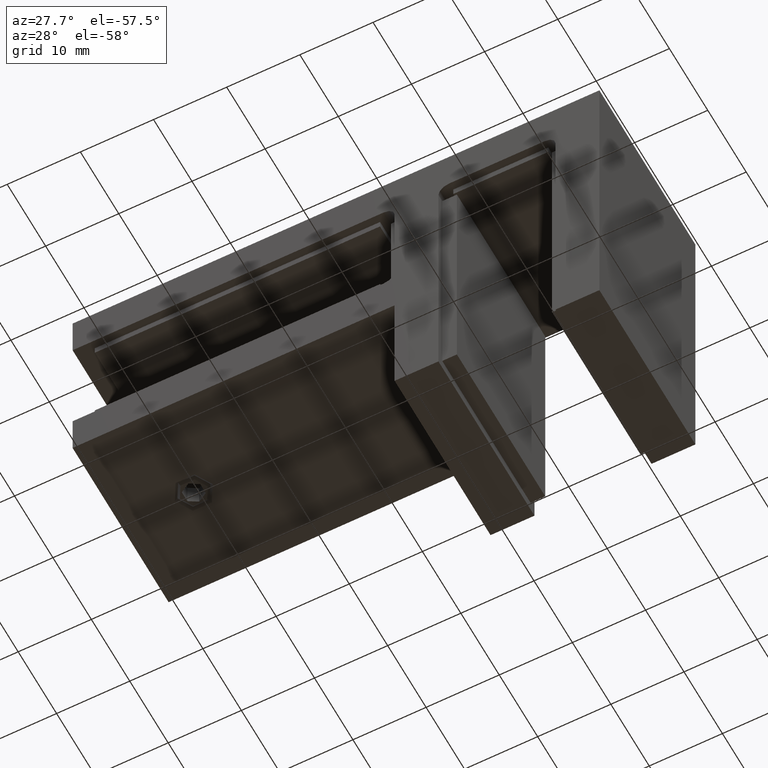
[diagram: clean part render]
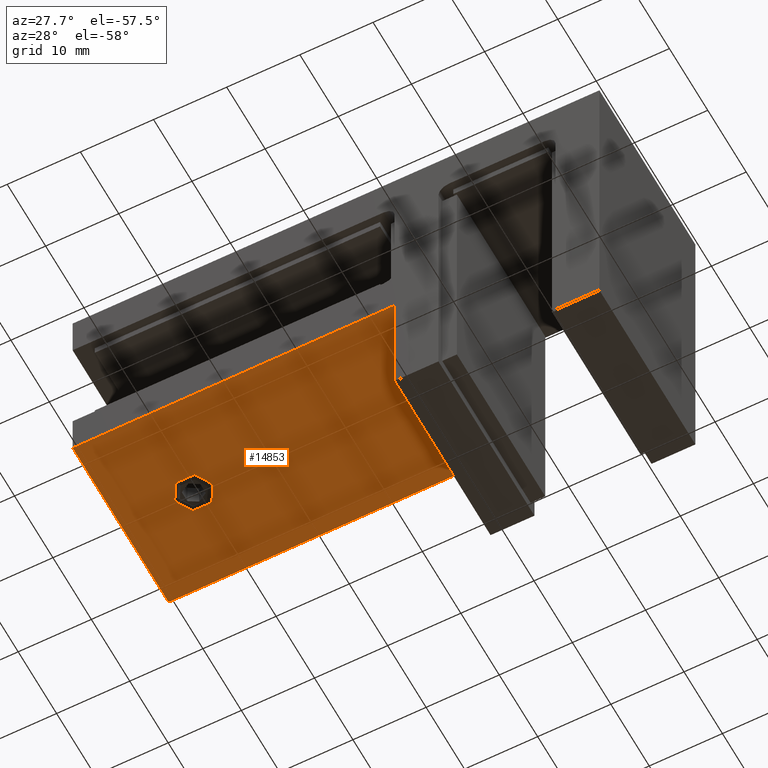
[diagram: same view with one face highlighted and labeled with its STEP entity id]
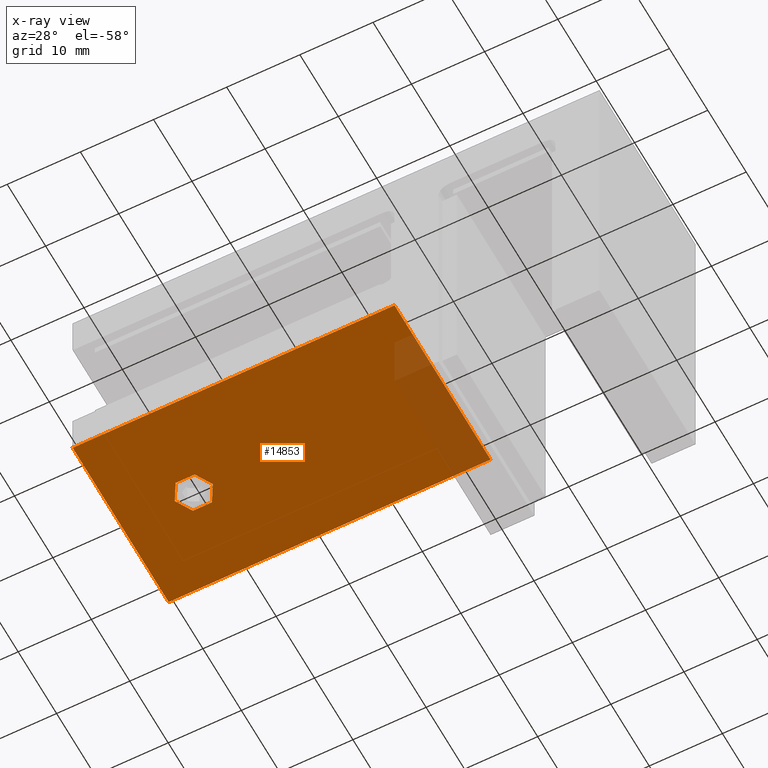
[diagram: x-ray of the same camera — body ghosted, the highlighted face saturated]
A machine part, auxiliary view. The second image highlights one B-rep face of the part: STEP entity #14853.
The next image is the same camera in x-ray: the body ghosted, the highlighted face saturated — about 9% of this face is hidden behind the body in this view.
In plain terms, the highlighted planar face has unit normal (0, 0, 1).
Its self-contained STEP definition (entity closure, byte-faithful):
#238 = DIRECTION ( 'NONE',  ( 0.000000000000000000, -0.000000000000000000, 1.000000000000000000 ) ) ;
#356 = ORIENTED_EDGE ( 'NONE', *, *, #20720, .T. ) ;
#823 = LINE ( 'NONE', #13944, #13621 ) ;
#890 = VECTOR ( 'NONE', #5391, 1000.000000000000000 ) ;
#1056 = CARTESIAN_POINT ( 'NONE',  ( -25.99999999999999645, -3.538031723716965276E-16, -5.500000000000005329 ) ) ;
#1732 = ORIENTED_EDGE ( 'NONE', *, *, #10830, .T. ) ;
#2001 = CARTESIAN_POINT ( 'NONE',  ( 7.999999999999998224, 12.50000000000000000, -5.500000000000005329 ) ) ;
#2382 = CARTESIAN_POINT ( 'NONE',  ( 7.999999999999998224, -12.50000000000000000, -5.500000000000005329 ) ) ;
#2420 = CIRCLE ( 'NONE', #20737, 2.599999999999991207 ) ;
#2588 = FACE_BOUND ( 'NONE', #5650, .T. ) ;
#3380 = FACE_OUTER_BOUND ( 'NONE', #15332, .T. ) ;
#3514 = AXIS2_PLACEMENT_3D ( 'NONE', #18749, #238, #18618 ) ;
#3800 = EDGE_CURVE ( 'NONE', #20100, #17940, #20849, .T. ) ;
#4326 = ORIENTED_EDGE ( 'NONE', *, *, #13559, .T. ) ;
#4391 = ORIENTED_EDGE ( 'NONE', *, *, #13712, .F. ) ;
#4682 = VERTEX_POINT ( 'NONE', #2382 ) ;
#4767 = CARTESIAN_POINT ( 'NONE',  ( 7.999999999999998224, -12.50000000000000000, -5.500000000000005329 ) ) ;
#4803 = VERTEX_POINT ( 'NONE', #21036 ) ;
#5269 = LINE ( 'NONE', #4767, #14127 ) ;
#5391 = DIRECTION ( 'NONE',  ( -1.000000000000000000, 0.000000000000000000, 0.000000000000000000 ) ) ;
#5595 = CARTESIAN_POINT ( 'NONE',  ( 7.999999999999998224, 12.50000000000000000, -5.500000000000005329 ) ) ;
#5650 = EDGE_LOOP ( 'NONE', ( #19551, #1732 ) ) ;
#5845 = DIRECTION ( 'NONE',  ( -0.000000000000000000, -1.000000000000000000, -0.000000000000000000 ) ) ;
#6056 = CARTESIAN_POINT ( 'NONE',  ( -23.40000000000000568, -3.539500459338577471E-17, -5.500000000000005329 ) ) ;
#6852 = CARTESIAN_POINT ( 'NONE',  ( -36.00000000000000000, 12.50000000000000000, -5.500000000000005329 ) ) ;
#6875 = CARTESIAN_POINT ( 'NONE',  ( 7.999999999999998224, 12.50000000000000000, -5.500000000000005329 ) ) ;
#10830 = EDGE_CURVE ( 'NONE', #17940, #20100, #2420, .T. ) ;
#10836 = DIRECTION ( 'NONE',  ( 0.000000000000000000, -0.000000000000000000, 1.000000000000000000 ) ) ;
#11335 = EDGE_CURVE ( 'NONE', #15688, #4803, #823, .T. ) ;
#12945 = VECTOR ( 'NONE', #18527, 1000.000000000000000 ) ;
#13350 = DIRECTION ( 'NONE',  ( 0.000000000000000000, -0.000000000000000000, 1.000000000000000000 ) ) ;
#13559 = EDGE_CURVE ( 'NONE', #17839, #4682, #21582, .T. ) ;
#13621 = VECTOR ( 'NONE', #5845, 1000.000000000000000 ) ;
#13712 = EDGE_CURVE ( 'NONE', #17839, #15688, #18213, .T. ) ;
#13944 = CARTESIAN_POINT ( 'NONE',  ( -36.00000000000000000, 12.50000000000000000, -5.500000000000005329 ) ) ;
#14127 = VECTOR ( 'NONE', #16428, 1000.000000000000000 ) ;
#14186 = DIRECTION ( 'NONE',  ( 1.000000000000000000, 0.000000000000000000, 0.000000000000000000 ) ) ;
#14474 = DIRECTION ( 'NONE',  ( 1.000000000000000000, 0.000000000000000000, 0.000000000000000000 ) ) ;
#14853 = ADVANCED_FACE ( 'NONE', ( #2588, #3380 ), #17021, .F. ) ;
#15332 = EDGE_LOOP ( 'NONE', ( #356, #19829, #4391, #4326 ) ) ;
#15688 = VERTEX_POINT ( 'NONE', #6852 ) ;
#16428 = DIRECTION ( 'NONE',  ( -1.000000000000000000, 0.000000000000000000, 0.000000000000000000 ) ) ;
#16654 = CARTESIAN_POINT ( 'NONE',  ( -25.99999999999999645, -3.538031723716965276E-16, -5.500000000000005329 ) ) ;
#17021 = PLANE ( 'NONE',  #3514 ) ;
#17839 = VERTEX_POINT ( 'NONE', #2001 ) ;
#17940 = VERTEX_POINT ( 'NONE', #6056 ) ;
#18036 = CARTESIAN_POINT ( 'NONE',  ( -28.59999999999998721, -3.538031723716965276E-16, -5.500000000000005329 ) ) ;
#18213 = LINE ( 'NONE', #5595, #890 ) ;
#18527 = DIRECTION ( 'NONE',  ( -0.000000000000000000, -1.000000000000000000, -0.000000000000000000 ) ) ;
#18618 = DIRECTION ( 'NONE',  ( 1.000000000000000000, 0.000000000000000000, -0.000000000000000000 ) ) ;
#18749 = CARTESIAN_POINT ( 'NONE',  ( 7.999999999999998224, 12.50000000000000000, -5.500000000000005329 ) ) ;
#19551 = ORIENTED_EDGE ( 'NONE', *, *, #3800, .T. ) ;
#19829 = ORIENTED_EDGE ( 'NONE', *, *, #11335, .F. ) ;
#20100 = VERTEX_POINT ( 'NONE', #18036 ) ;
#20720 = EDGE_CURVE ( 'NONE', #4682, #4803, #5269, .T. ) ;
#20737 = AXIS2_PLACEMENT_3D ( 'NONE', #16654, #13350, #14474 ) ;
#20849 = CIRCLE ( 'NONE', #20948, 2.599999999999991207 ) ;
#20948 = AXIS2_PLACEMENT_3D ( 'NONE', #1056, #10836, #14186 ) ;
#21036 = CARTESIAN_POINT ( 'NONE',  ( -36.00000000000000000, -12.50000000000000000, -5.500000000000005329 ) ) ;
#21582 = LINE ( 'NONE', #6875, #12945 ) ;